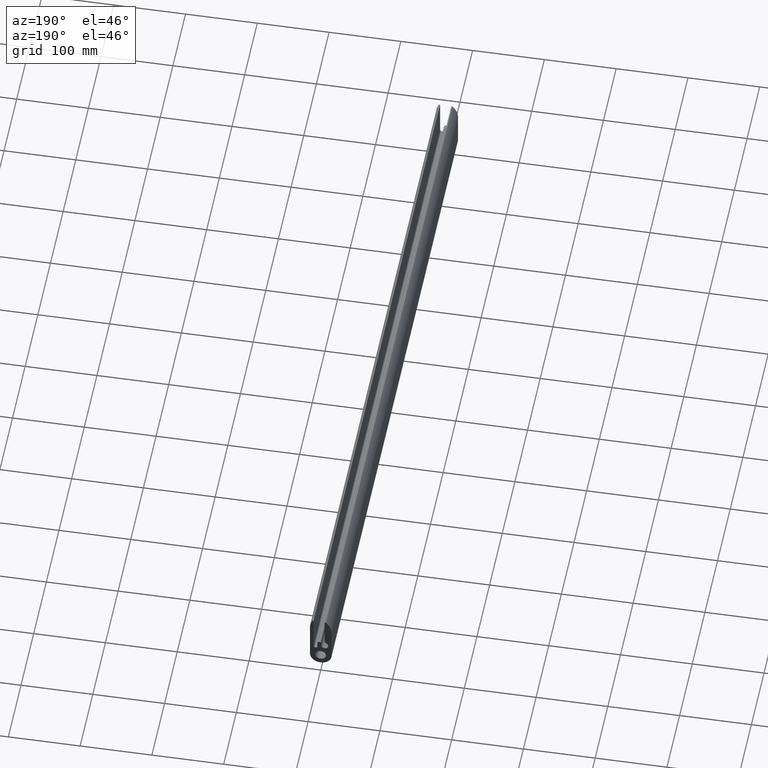
[diagram: clean part render]
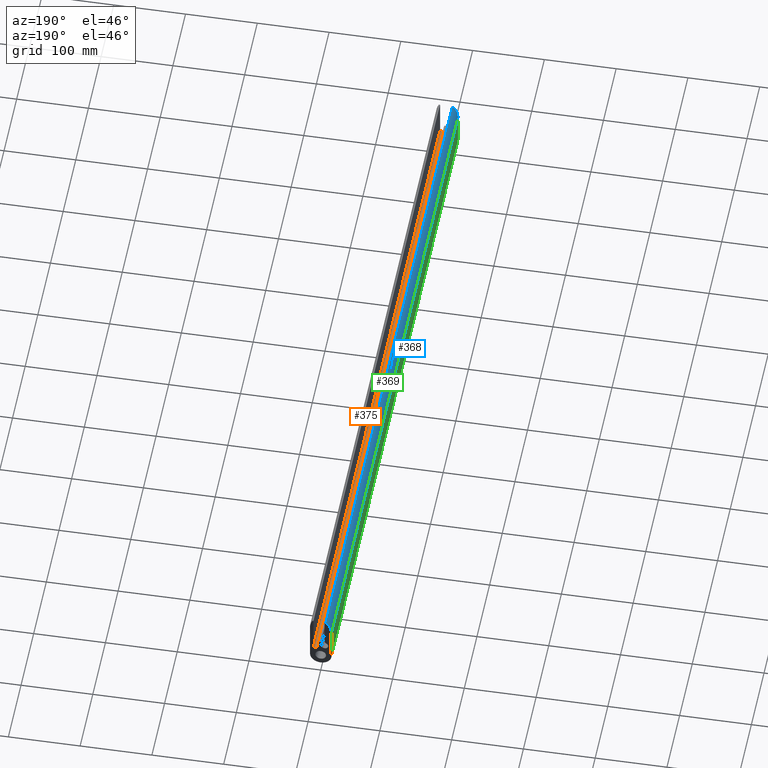
[diagram: same view with three faces highlighted in distinct colors, each labeled with its STEP entity id]
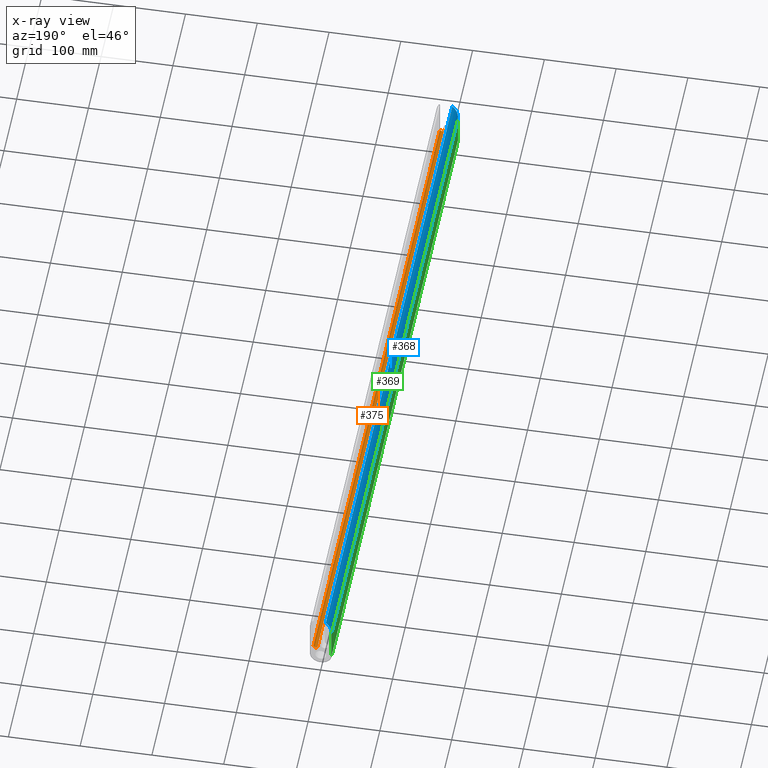
[diagram: x-ray of the same camera — body ghosted, the three highlighted faces saturated]
A machine part, auxiliary view with three faces highlighted in distinct colors.
The next image is the same camera in x-ray (body ghosted, the three faces saturated) — at least one of them is partly hidden behind the body in this view.
Their STEP definitions:

[orange] entity #375 — the highlighted cylindrical surface (edge-blend (fillet) strip) has radius 2.75 mm, axis along (0, 1, 0).
#38=FACE_OUTER_BOUND('',#58,.T.);
#58=EDGE_LOOP('',(#292,#293,#294,#295));
#88=LINE('',#638,#120);
#89=LINE('',#644,#121);
#120=VECTOR('',#523,10.);
#121=VECTOR('',#530,10.);
#148=CIRCLE('',#432,2.75);
#149=CIRCLE('',#433,2.75);
#178=VERTEX_POINT('',#634);
#179=VERTEX_POINT('',#636);
#180=VERTEX_POINT('',#640);
#181=VERTEX_POINT('',#642);
#226=EDGE_CURVE('',#178,#179,#88,.T.);
#227=EDGE_CURVE('',#180,#178,#148,.T.);
#228=EDGE_CURVE('',#181,#179,#149,.T.);
#229=EDGE_CURVE('',#180,#181,#89,.T.);
#292=ORIENTED_EDGE('',*,*,#227,.T.);
#293=ORIENTED_EDGE('',*,*,#226,.T.);
#294=ORIENTED_EDGE('',*,*,#228,.F.);
#295=ORIENTED_EDGE('',*,*,#229,.F.);
#360=CYLINDRICAL_SURFACE('',#431,2.75);
#375=ADVANCED_FACE('',(#38),#360,.F.);
#431=AXIS2_PLACEMENT_3D('',#639,#524,#525);
#432=AXIS2_PLACEMENT_3D('',#641,#526,#527);
#433=AXIS2_PLACEMENT_3D('',#643,#528,#529);
#523=DIRECTION('',(0.,1.,0.));
#524=DIRECTION('center_axis',(0.,1.,0.));
#525=DIRECTION('ref_axis',(-1.,0.,0.));
#526=DIRECTION('center_axis',(0.,-1.,0.));
#527=DIRECTION('ref_axis',(-1.,0.,0.));
#528=DIRECTION('center_axis',(0.,-1.,0.));
#529=DIRECTION('ref_axis',(-1.,0.,0.));
#530=DIRECTION('',(0.,1.,0.));
#634=CARTESIAN_POINT('',(10.,0.,16.));
#636=CARTESIAN_POINT('',(10.,1000.,16.));
#638=CARTESIAN_POINT('',(10.,0.,16.));
#639=CARTESIAN_POINT('Origin',(7.25,0.,16.));
#640=CARTESIAN_POINT('',(4.5,0.,16.));
#641=CARTESIAN_POINT('Origin',(7.25,0.,16.));
#642=CARTESIAN_POINT('',(4.5,1000.,16.));
#643=CARTESIAN_POINT('Origin',(7.25,1000.,16.));
#644=CARTESIAN_POINT('',(4.5,0.,16.));

[blue] entity #368 — the highlighted cylindrical surface (edge-blend (fillet) strip) has radius 28 mm, axis along (0, 1, 0).
#31=FACE_OUTER_BOUND('',#51,.T.);
#51=EDGE_LOOP('',(#264,#265,#266,#267));
#75=LINE('',#596,#107);
#76=LINE('',#602,#108);
#107=VECTOR('',#480,10.);
#108=VECTOR('',#487,10.);
#140=CIRCLE('',#417,28.);
#141=CIRCLE('',#418,28.);
#164=VERTEX_POINT('',#592);
#165=VERTEX_POINT('',#594);
#166=VERTEX_POINT('',#598);
#167=VERTEX_POINT('',#600);
#205=EDGE_CURVE('',#164,#165,#75,.T.);
#206=EDGE_CURVE('',#166,#164,#140,.T.);
#207=EDGE_CURVE('',#167,#165,#141,.T.);
#208=EDGE_CURVE('',#166,#167,#76,.T.);
#264=ORIENTED_EDGE('',*,*,#206,.T.);
#265=ORIENTED_EDGE('',*,*,#205,.T.);
#266=ORIENTED_EDGE('',*,*,#207,.F.);
#267=ORIENTED_EDGE('',*,*,#208,.F.);
#356=CYLINDRICAL_SURFACE('',#416,28.);
#368=ADVANCED_FACE('',(#31),#356,.T.);
#416=AXIS2_PLACEMENT_3D('',#597,#481,#482);
#417=AXIS2_PLACEMENT_3D('',#599,#483,#484);
#418=AXIS2_PLACEMENT_3D('',#601,#485,#486);
#480=DIRECTION('',(0.,1.,0.));
#481=DIRECTION('center_axis',(0.,1.,0.));
#482=DIRECTION('ref_axis',(-1.,0.,0.));
#483=DIRECTION('center_axis',(0.,1.,0.));
#484=DIRECTION('ref_axis',(-1.,0.,0.));
#485=DIRECTION('center_axis',(0.,1.,0.));
#486=DIRECTION('ref_axis',(-1.,0.,0.));
#487=DIRECTION('',(0.,1.,0.));
#592=CARTESIAN_POINT('',(-7.22222222222222,0.,64.6916610887772));
#594=CARTESIAN_POINT('',(-7.22222222222222,1000.,64.6916610887772));
#596=CARTESIAN_POINT('',(-7.22222222222222,0.,64.6916610887772));
#597=CARTESIAN_POINT('Origin',(13.,0.,45.3251506030169));
#598=CARTESIAN_POINT('',(-15.,0.,45.3251506030169));
#599=CARTESIAN_POINT('Origin',(13.,0.,45.3251506030169));
#600=CARTESIAN_POINT('',(-15.,1000.,45.3251506030169));
#601=CARTESIAN_POINT('Origin',(13.,1000.,45.3251506030169));
#602=CARTESIAN_POINT('',(-15.,0.,45.3251506030169));

[green] entity #369 — the highlighted planar face has unit normal (-1, 0, 0).
#18=PLANE('',#419);
#32=FACE_OUTER_BOUND('',#52,.T.);
#52=EDGE_LOOP('',(#268,#269,#270,#271));
#76=LINE('',#602,#108);
#77=LINE('',#605,#109);
#78=LINE('',#607,#110);
#79=LINE('',#608,#111);
#108=VECTOR('',#487,10.);
#109=VECTOR('',#490,10.);
#110=VECTOR('',#491,10.);
#111=VECTOR('',#492,10.);
#166=VERTEX_POINT('',#598);
#167=VERTEX_POINT('',#600);
#168=VERTEX_POINT('',#604);
#169=VERTEX_POINT('',#606);
#208=EDGE_CURVE('',#166,#167,#76,.T.);
#209=EDGE_CURVE('',#168,#166,#77,.T.);
#210=EDGE_CURVE('',#169,#167,#78,.T.);
#211=EDGE_CURVE('',#168,#169,#79,.T.);
#268=ORIENTED_EDGE('',*,*,#209,.T.);
#269=ORIENTED_EDGE('',*,*,#208,.T.);
#270=ORIENTED_EDGE('',*,*,#210,.F.);
#271=ORIENTED_EDGE('',*,*,#211,.F.);
#369=ADVANCED_FACE('',(#32),#18,.T.);
#419=AXIS2_PLACEMENT_3D('',#603,#488,#489);
#487=DIRECTION('',(0.,1.,0.));
#488=DIRECTION('center_axis',(-1.,0.,9.79785403780883E-17));
#489=DIRECTION('ref_axis',(9.79785403780883E-17,0.,1.));
#490=DIRECTION('',(9.79785403780883E-17,0.,1.));
#491=DIRECTION('',(9.79785403780883E-17,0.,1.));
#492=DIRECTION('',(0.,1.,0.));
#598=CARTESIAN_POINT('',(-15.,0.,45.3251506030169));
#600=CARTESIAN_POINT('',(-15.,1000.,45.3251506030169));
#602=CARTESIAN_POINT('',(-15.,0.,45.3251506030169));
#603=CARTESIAN_POINT('Origin',(-15.,0.,3.67394039744206E-15));
#604=CARTESIAN_POINT('',(-15.,0.,3.67394039744206E-15));
#605=CARTESIAN_POINT('',(-15.,0.,0.));
#606=CARTESIAN_POINT('',(-15.,1000.,4.44089209850063E-15));
#607=CARTESIAN_POINT('',(-15.,1000.,0.));
#608=CARTESIAN_POINT('',(-15.,0.,3.67394039744206E-15));